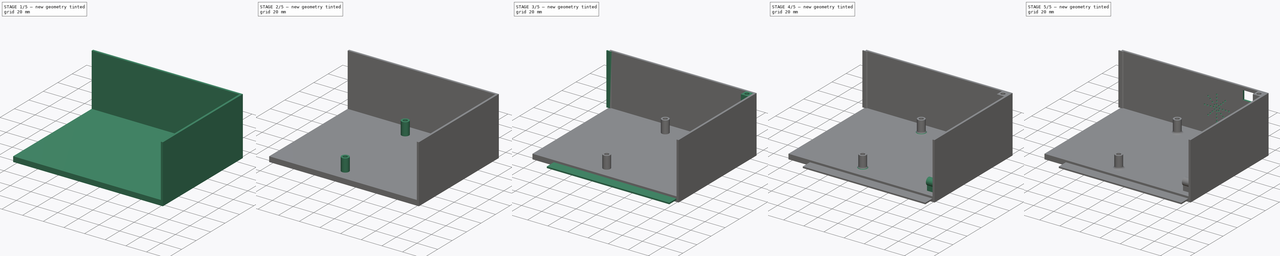
[diagram: build sequence overview — one tinted view per stage of 5, left to right]
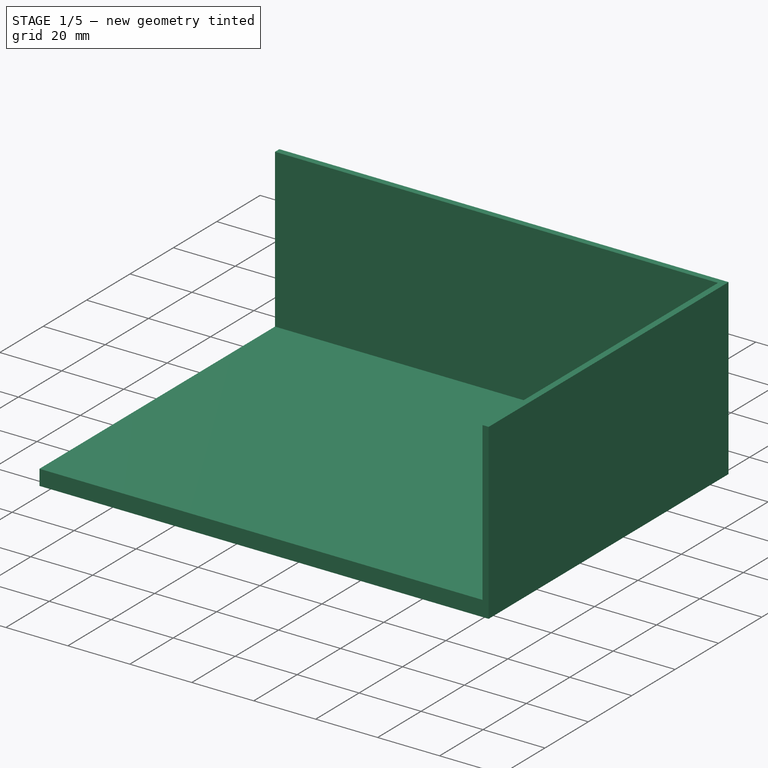
[diagram: stage 1 of 5 — iso view after this stage's code; geometry added in this stage tinted green]
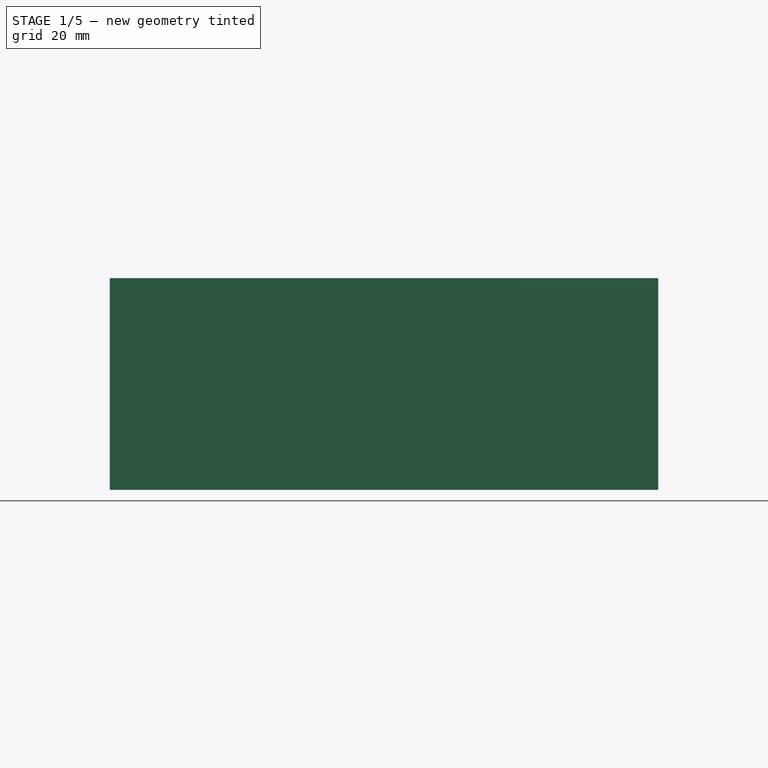
[diagram: stage 1 of 5 — front view after this stage's code; geometry added in this stage tinted green]
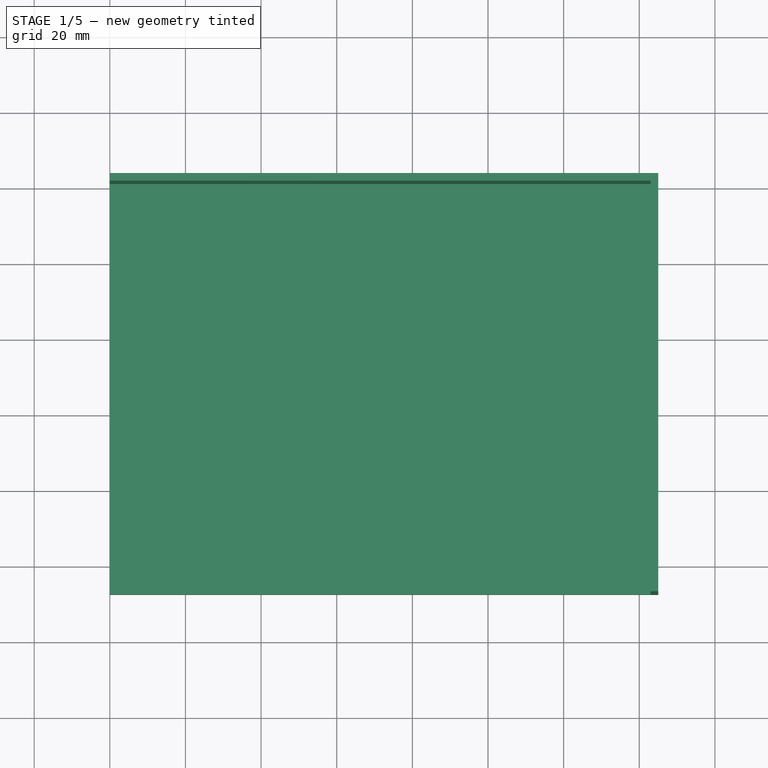
[diagram: stage 1 of 5 — top view after this stage's code; geometry added in this stage tinted green]
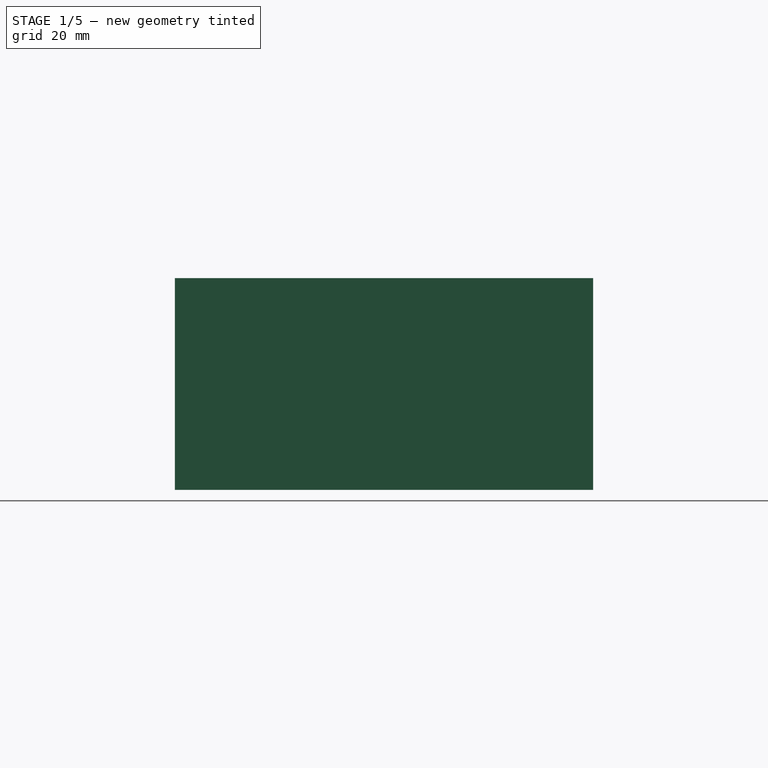
[diagram: stage 1 of 5 — right view after this stage's code; geometry added in this stage tinted green]
FCSTD DOCUMENT  (FreeCAD 2022.430R26244 +4758 (Git))
Label: FirstPartProcessor
License: All rights reserved
LicenseURL: http://en.wikipedia.org/wiki/All_rights_reserved
objects: Sketcher::SketchObject×15, PartDesign::Pad×9, PartDesign::Pocket×6, PartDesign::Fillet×2, PartDesign::CoordinateSystem×1, PartDesign::PolarPattern×1, PartDesign::Body×1, App::Part×1
note: 71 computed .brp shape members not serialized (recipe doc carries the construction recipe); baked Part::Feature solids carry a one-line shape summary decoded from their .brp

FEATURE [PartDesign::CoordinateSystem] LCS_0
  AttacherType = Attacher::AttachEngine3D
  MapMode = 2
  Support = -> [X_Axis001]
  TreeRank = 0
FEATURE [Sketcher::SketchObject] Sketch_1
  FullyConstrained = true
  TreeRank = 0
  sketch-geometry (4):
    g0: LineSegment StartX=0 StartY=0 StartZ=0 EndX=-140 EndY=0 EndZ=0
    g1: LineSegment StartX=-140 StartY=0 StartZ=0 EndX=-140 EndY=93 EndZ=0
    g2: LineSegment StartX=-140 StartY=93 StartZ=0 EndX=0 EndY=93 EndZ=0
    g3: LineSegment StartX=0 StartY=93 StartZ=0 EndX=0 EndY=0 EndZ=0
  constraints (11):
    c: Coincident(g0,g1)
    c: Coincident(g1,g2)
    c: Coincident(g2,g3)
    c: Coincident(g3,g0)
    c: Horizontal(g0)
    c: Horizontal(g2)
    c: Vertical(g1)
    c: Vertical(g3)
    c: Coincident(g0,g-1)
    c: DistanceY(g3,g3) = 93
    c: DistanceX(g2,g2) = 140
FEATURE [PartDesign::Pad] Pad  label="MainSupport"
  AddSubType = 0
  CheckUpToFaceLimits = true
  ClaimChildren = false
  Direction = (0,0,1)
  Fit = 0
  FitJoin = 0
  InnerFit = 0
  InnerFitJoin = 0
  InnerTaperAngle = 0
  InnerTaperAngleRev = 0
  Length = 5
  Length2 = 100
  NewSolid = false
  Profile = -> Sketch_1
  Suppress = false
  TreeRank = 0
  Type = 0
  _ProfileBasedVersion = 0
FEATURE [Sketcher::SketchObject] Sketch
  ExternalGeometry = -> [Pad]
  FullyConstrained = true
  MapMode = 5
  Support = -> [XY_Plane001]
  TreeRank = 0
  sketch-geometry (4):
    g0: LineSegment StartX=0 StartY=0 StartZ=0 EndX=-140 EndY=0 EndZ=0
    g1: LineSegment StartX=-140 StartY=0 StartZ=0 EndX=-140 EndY=-7.4 EndZ=0
    g2: LineSegment StartX=-140 StartY=-7.4 StartZ=0 EndX=0 EndY=-7.4 EndZ=0
    g3: LineSegment StartX=0 StartY=-7.4 StartZ=0 EndX=0 EndY=0 EndZ=0
  constraints (10):
    c: Coincident(g0,g1)
    c: Coincident(g1,g2)
    c: Coincident(g2,g3)
    c: Coincident(g3,g0)
    c: Horizontal(g2)
    c: Vertical(g1)
    c: Vertical(g3)
    c: Coincident(g0,g-1)
    c: Coincident(g0,g-3)
    c: DistanceY(g3,g3) = 7.4
FEATURE [PartDesign::Pad] Pad001  label="ExtraGapSize"
  AddSubType = 0
  BaseFeature = -> Pad
  CheckUpToFaceLimits = true
  ClaimChildren = false
  Direction = (0,0,1)
  Fit = 0
  FitJoin = 0
  InnerFit = 0
  InnerFitJoin = 0
  InnerTaperAngle = 0
  InnerTaperAngleRev = 0
  Length = 5
  Length2 = 100
  NewSolid = false
  Profile = -> Sketch
  Suppress = false
  TreeRank = 0
  Type = 0
  _ProfileBasedVersion = 0
FEATURE [Sketcher::SketchObject] Sketch003
  ExternalGeometry = -> [Pad001]
  FullyConstrained = true
  MapMode = 5
  Support = -> [XY_Plane001]
  TreeRank = 0
  sketch-geometry (6):
    g0: LineSegment StartX=0 StartY=-7.4 StartZ=0 EndX=5 EndY=-7.4 EndZ=0
    g1: LineSegment StartX=5 StartY=-7.4 StartZ=0 EndX=5 EndY=103.2 EndZ=0
    g2: LineSegment StartX=5 StartY=103.2 StartZ=0 EndX=-140 EndY=103.2 EndZ=0
    g3: LineSegment StartX=0 StartY=93 StartZ=0 EndX=0 EndY=-7.4 EndZ=0
    g4: LineSegment StartX=-140 StartY=93 StartZ=0 EndX=-140 EndY=103.2 EndZ=0
    g5: LineSegment StartX=-140 StartY=93 StartZ=0 EndX=0 EndY=93 EndZ=0
  constraints (15):
    c: Coincident(g0,g1)
    c: Coincident(g1,g2)
    c: Coincident(g3,g0)
    c: Horizontal(g0)
    c: Horizontal(g2)
    c: Vertical(g1)
    c: DistanceX(g0,g0) = 5
    c: Coincident(g0,g-4)
    c: Coincident(g3,g-3)
    c: Coincident(g4,g-5)
    c: Vertical(g4)
    c: Coincident(g5,g4)
    c: Coincident(g5,g3)
    c: Coincident(g2,g4)
    c: DistanceY(g4,g4) = 10.2
FEATURE [PartDesign::Pad] Pad003  label="ExtraSideSize"
  AddSubType = 0
  BaseFeature = -> Pad001
  CheckUpToFaceLimits = true
  ClaimChildren = false
  Direction = (0,0,1)
  Fit = 0
  FitJoin = 0
  InnerFit = 0
  InnerFitJoin = 0
  InnerTaperAngle = 0
  InnerTaperAngleRev = 0
  Length = 5
  Length2 = 100
  NewSolid = false
  Profile = -> Sketch003
  Suppress = false
  TreeRank = 0
  Type = 0
  _ProfileBasedVersion = 0
FEATURE [Sketcher::SketchObject] Sketch004
  ExternalGeometry = -> [Pad003]
  FullyConstrained = true
  MapMode = 5
  Placement = pos=(0,0,5) rot=(0,0,1;0rad)
  Support = -> [Pad003]
  TreeRank = 0
  sketch-geometry (6):
    g0: LineSegment StartX=5 StartY=103.2 StartZ=0 EndX=-140 EndY=103.2 EndZ=0
    g1: LineSegment StartX=5 StartY=-7.4 StartZ=0 EndX=5 EndY=103.2 EndZ=0
    g2: LineSegment StartX=3 StartY=-7.4 StartZ=0 EndX=3 EndY=101.2 EndZ=0
    g3: LineSegment StartX=3 StartY=-7.4 StartZ=0 EndX=5 EndY=-7.4 EndZ=0
    g4: LineSegment StartX=-140 StartY=103.2 StartZ=0 EndX=-140 EndY=101.2 EndZ=0
    g5: LineSegment StartX=3 StartY=101.2 StartZ=0 EndX=-140 EndY=101.2 EndZ=0
  constraints (15):
    c: Coincident(g1,g0)
    c: Coincident(g0,g-3)
    c: Vertical(g2)
    c: Coincident(g1,g-3)
    c: PointOnObject(g2,g-4)
    c: Coincident(g3,g2)
    c: Coincident(g3,g1)
    c: Coincident(g0,g-5)
    c: Coincident(g4,g0)
    c: PointOnObject(g4,g-5)
    c: Coincident(g5,g2)
    c: Coincident(g5,g4)
    c: Horizontal(g5)
    c: DistanceX(g3,g3) = 2
    c: DistanceY(g4,g4) = 2
FEATURE [PartDesign::Pad] Pad004  label="SidePanel"
  AddSubType = 0
  BaseFeature = -> Pad003
  CheckUpToFaceLimits = true
  ClaimChildren = false
  Direction = (0,0,1)
  Fit = 0
  FitJoin = 0
  InnerFit = 0
  InnerFitJoin = 0
  InnerTaperAngle = 0
  InnerTaperAngleRev = 0
  Length = 51
  Length2 = 100
  NewSolid = false
  Profile = -> Sketch004
  Suppress = false
  TreeRank = 0
  Type = 0
  _ProfileBasedVersion = 0
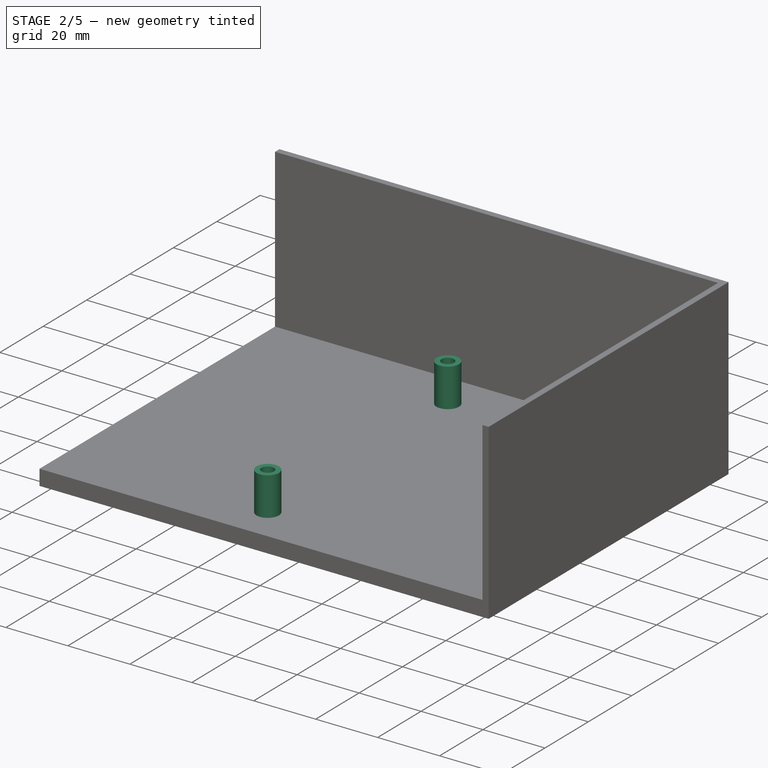
[diagram: stage 2 of 5 — iso view after this stage's code; geometry added in this stage tinted green]
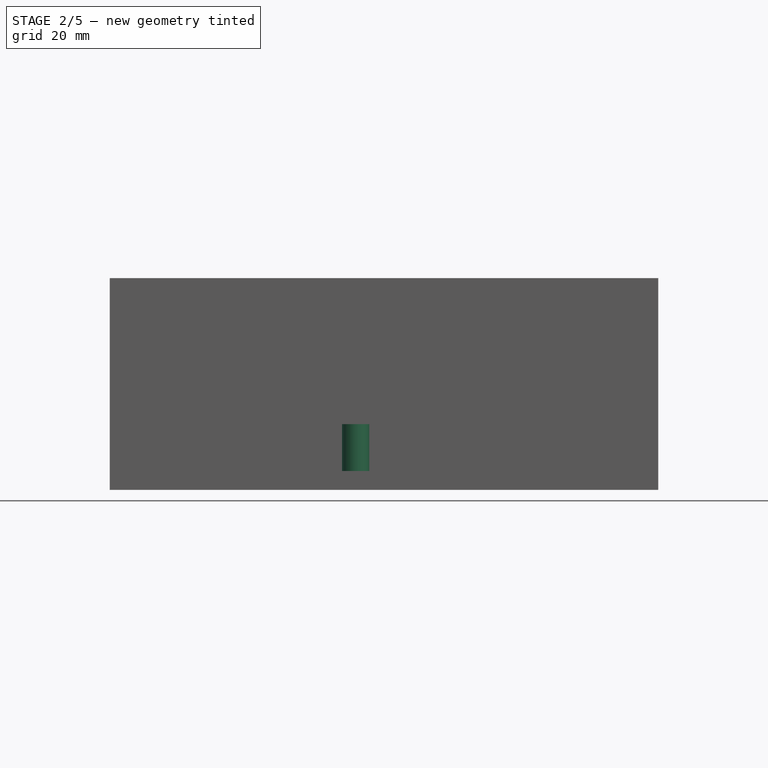
[diagram: stage 2 of 5 — front view after this stage's code; geometry added in this stage tinted green]
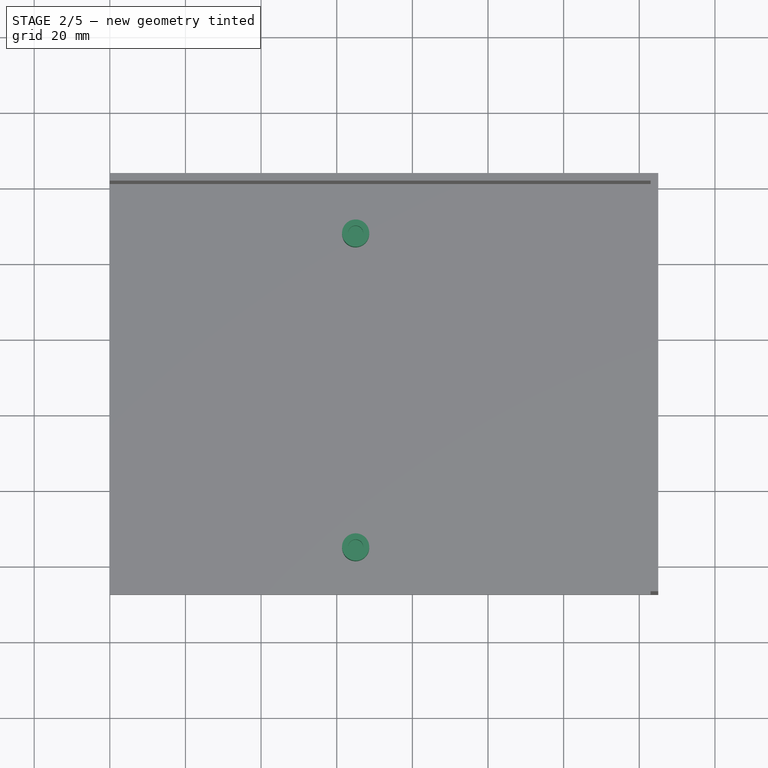
[diagram: stage 2 of 5 — top view after this stage's code; geometry added in this stage tinted green]
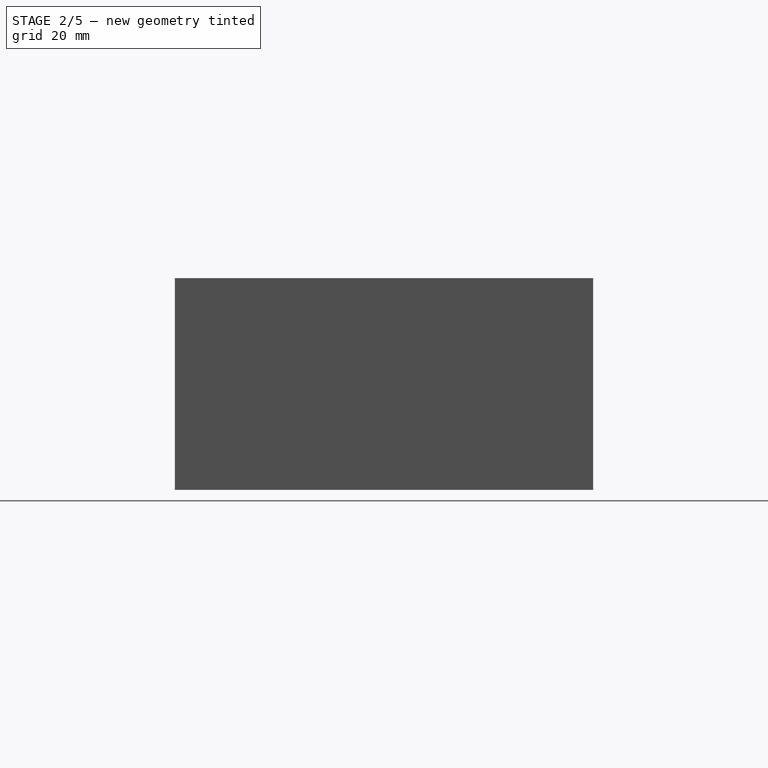
[diagram: stage 2 of 5 — right view after this stage's code; geometry added in this stage tinted green]
FEATURE [Sketcher::SketchObject] Sketch006
  ExternalGeometry = -> [Pad004]
  FullyConstrained = true
  MapMode = 5
  Placement = pos=(0,0,5) rot=(0,0,1;0rad)
  TreeRank = 0
  sketch-geometry (3):
    g0: Circle CenterX=-75 CenterY=5 CenterZ=0 NormalX=0 NormalY=0 NormalZ=1 AngleXU=0 Radius=3.6
    g1: Circle CenterX=-75 CenterY=88 CenterZ=0 NormalX=0 NormalY=0 NormalZ=1 AngleXU=0 Radius=3.6
    g2: LineSegment [constr] StartX=-75 StartY=88 StartZ=0 EndX=-75 EndY=5 EndZ=0
  constraints (8):
    c: DistanceY(g-1,g0) = 5
    c: Diameter(g0) = 7.2
    c: DistanceY(g1,g-3) = 5
    c: Diameter(g1) = 7.2
    c: DistanceX(g-3,g1) = 65
    c: Coincident(g2,g1)
    c: Coincident(g2,g0)
    c: Vertical(g2)
FEATURE [PartDesign::Pad] Pad006  label="ProcessorColumn"
  AddSubType = 0
  BaseFeature = -> Pad004
  CheckUpToFaceLimits = true
  ClaimChildren = false
  Direction = (0,0,1)
  Fit = 0
  FitJoin = 0
  InnerFit = 0
  InnerFitJoin = 0
  InnerTaperAngle = 0
  InnerTaperAngleRev = 0
  Length = 12.4
  Length2 = 100
  NewSolid = false
  Profile = -> Sketch006
  Suppress = false
  TreeRank = 0
  Type = 0
  _ProfileBasedVersion = 0
FEATURE [Sketcher::SketchObject] Sketch009
  ExternalGeometry = -> [Pad006]
  FullyConstrained = true
  MapMode = 5
  Placement = pos=(-140,0,0) rot=(0.57735,-0.57735,-0.57735;2.0944rad)
  TreeRank = 0
  sketch-geometry (4):
    g0: LineSegment StartX=-101.25 StartY=3.5 StartZ=0 EndX=-13.55 EndY=3.5 EndZ=0
    g1: LineSegment StartX=-13.55 StartY=3.5 StartZ=0 EndX=-13.55 EndY=1.42 EndZ=0
    g2: LineSegment StartX=-13.55 StartY=1.42 StartZ=0 EndX=-101.25 EndY=1.42 EndZ=0
    g3: LineSegment StartX=-101.25 StartY=1.42 StartZ=0 EndX=-101.25 EndY=3.5 EndZ=0
  constraints (12):
    c: Coincident(g0,g1)
    c: Coincident(g1,g2)
    c: Coincident(g2,g3)
    c: Coincident(g3,g0)
    c: Horizontal(g0)
    c: Horizontal(g2)
    c: Vertical(g1)
    c: Vertical(g3)
    c: DistanceX(g-3,g0) = 1.95
    c: DistanceY(g1,g1) = 2.08
    c: DistanceY(g0,g-4) = 1.5
    c: DistanceX(g0,g-4) = 20.95
FEATURE [PartDesign::Pocket] Pocket003  label="PuzzleHole2"
  AddSubType = 1
  BaseFeature = -> Pad006
  CheckUpToFaceLimits = true
  ClaimChildren = false
  Fit = 0
  FitJoin = 0
  InnerFit = 0
  InnerFitJoin = 0
  InnerTaperAngle = 0
  InnerTaperAngleRev = 0
  Length = 11
  Length2 = 100
  NewSolid = false
  Profile = -> Sketch009
  Suppress = false
  TreeRank = 0
  Type = 0
  _ProfileBasedVersion = 0
  _Version = 0
FEATURE [Sketcher::SketchObject] Sketch010
  ExternalGeometry = -> [Pocket003]
  FullyConstrained = true
  MapMode = 5
  Placement = pos=(0,0,17.4) rot=(0,0,1;0rad)
  Support = -> [Pocket003]
  TreeRank = 1
  sketch-geometry (2):
    g0: Circle CenterX=-75 CenterY=88 CenterZ=0 NormalX=0 NormalY=0 NormalZ=1 AngleXU=0 Radius=2
    g1: Circle CenterX=-75 CenterY=5 CenterZ=0 NormalX=0 NormalY=0 NormalZ=1 AngleXU=0 Radius=2
  constraints (4):
    c: Coincident(g0,g-3)
    c: Coincident(g1,g-4)
    c: Diameter(g0) = 4
    c: Diameter(g1) = 4
FEATURE [PartDesign::Pocket] Pocket  label="ProcessorColumnHole"
  AddSubType = 1
  BaseFeature = -> Pocket003
  CheckUpToFaceLimits = true
  ClaimChildren = false
  Fit = 0
  FitJoin = 0
  InnerFit = 0
  InnerFitJoin = 0
  InnerTaperAngle = 0
  InnerTaperAngleRev = 0
  Length = 6.7
  Length2 = 100
  Linearize = true
  NewSolid = false
  Profile = -> Sketch010
  Suppress = false
  TreeRank = 2
  Type = 0
  _ProfileBasedVersion = 1
  _Version = 1
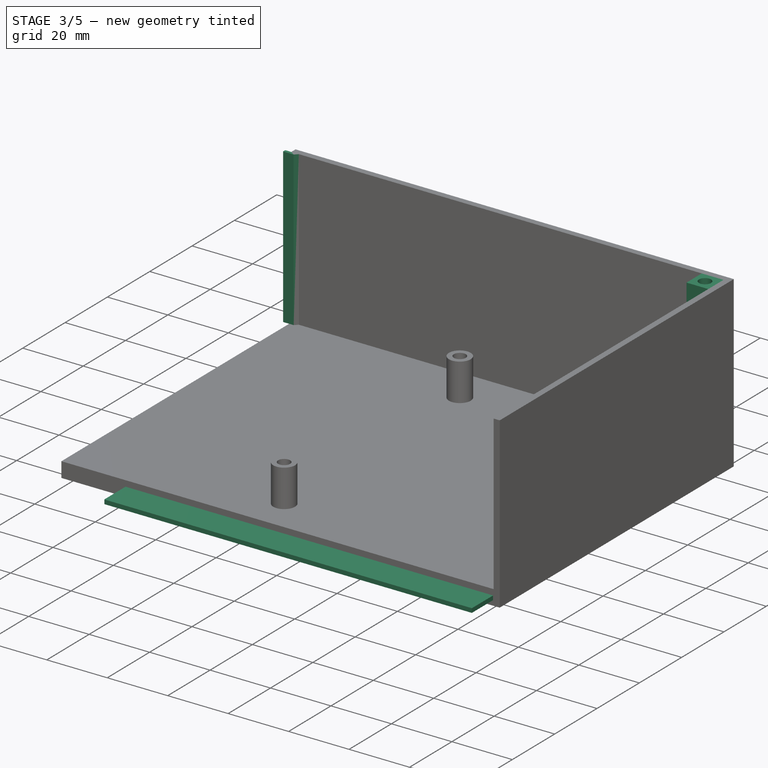
[diagram: stage 3 of 5 — iso view after this stage's code; geometry added in this stage tinted green]
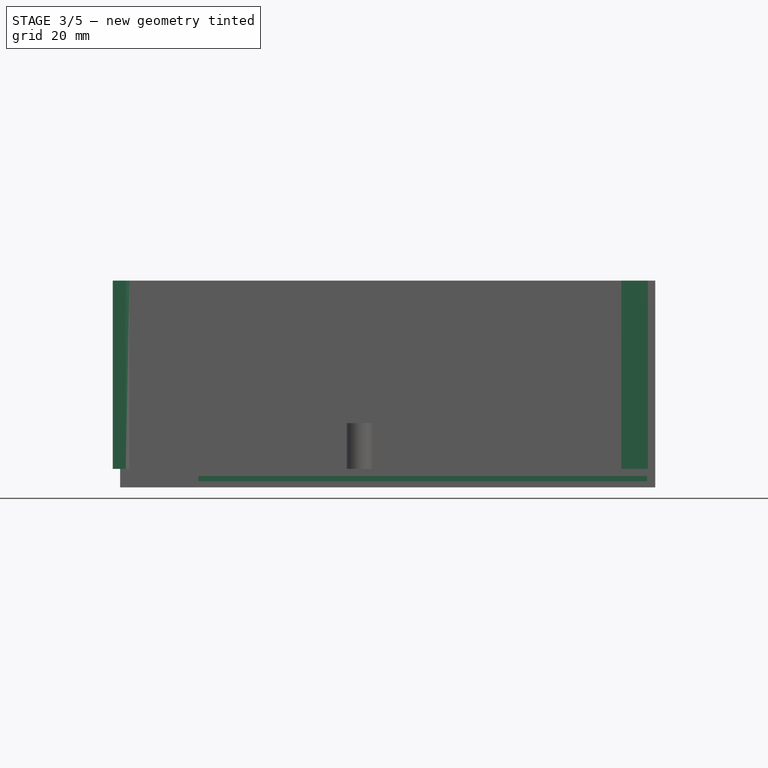
[diagram: stage 3 of 5 — front view after this stage's code; geometry added in this stage tinted green]
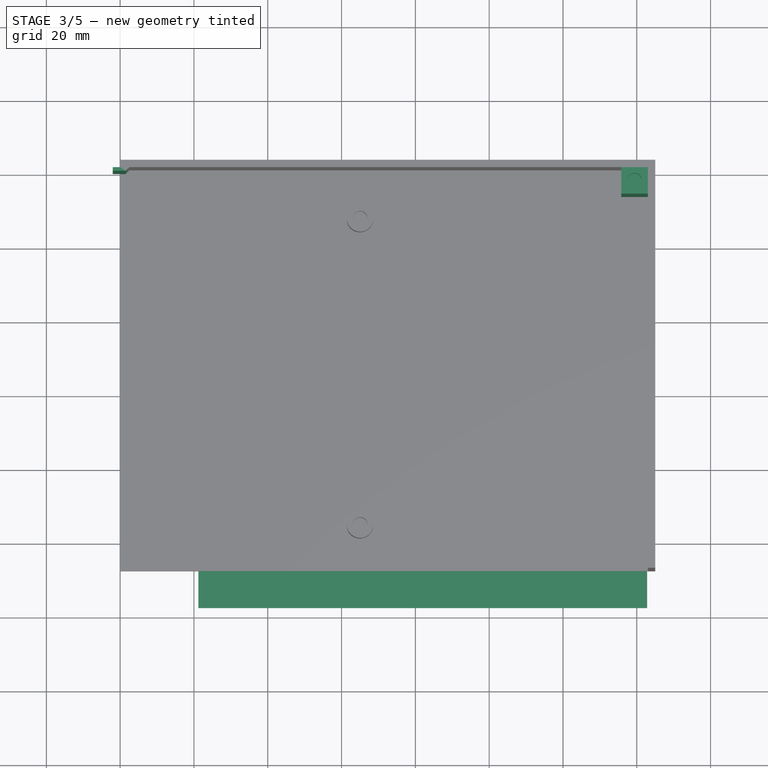
[diagram: stage 3 of 5 — top view after this stage's code; geometry added in this stage tinted green]
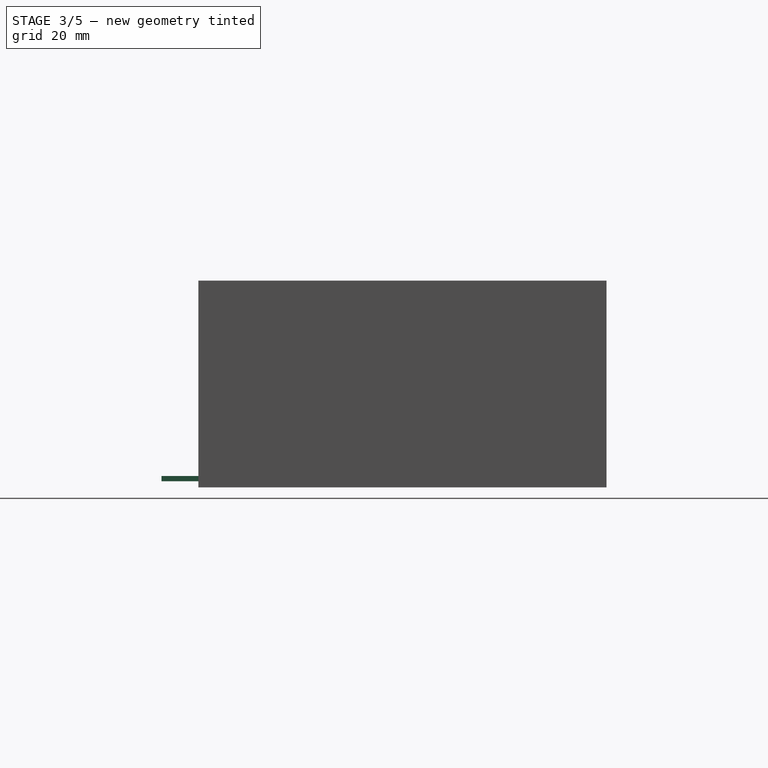
[diagram: stage 3 of 5 — right view after this stage's code; geometry added in this stage tinted green]
FEATURE [Sketcher::SketchObject] Sketch011
  ExternalGeometry = -> [Pocket]
  FullyConstrained = true
  MapMode = 5
  Placement = pos=(0,0,5) rot=(0,0,1;0rad)
  Support = -> [Pocket]
  TreeRank = 3
  sketch-geometry (6):
    g0: LineSegment StartX=-138.5 StartY=101.2 StartZ=0 EndX=-142 EndY=101.2 EndZ=0
    g1: LineSegment StartX=-142 StartY=101.2 StartZ=0 EndX=-142 EndY=100.2 EndZ=0
    g2: LineSegment StartX=-142 StartY=100.2 StartZ=0 EndX=-138.5 EndY=100.2 EndZ=0
    g3: LineSegment [constr] StartX=-138.5 StartY=100.2 StartZ=0 EndX=-138.5 EndY=101.2 EndZ=0
    g4: LineSegment StartX=-138.5 StartY=100.2 StartZ=0 EndX=-137.5 EndY=101.2 EndZ=0
    g5: LineSegment StartX=-137.5 StartY=101.2 StartZ=0 EndX=-138.5 EndY=101.2 EndZ=0
  constraints (17):
    c: Coincident(g0,g1)
    c: Coincident(g1,g2)
    c: Coincident(g2,g3)
    c: Coincident(g3,g0)
    c: Horizontal(g0)
    c: Horizontal(g2)
    c: Vertical(g1)
    c: Vertical(g3)
    c: PointOnObject(g0,g-3)
    c: DistanceX(g0,g-3) = 2
    c: DistanceX(g-3,g0) = 1.5
    c: DistanceY(g1,g1) = 1
    c: Coincident(g4,g2)
    c: PointOnObject(g4,g-3)
    c: Coincident(g5,g4)
    c: Coincident(g5,g0)
    c: Angle(g4,g3) = 0.785398
FEATURE [PartDesign::Pad] Pad007  label="PanelGuard"
  AddSubType = 0
  AlongSketchNormal = false
  BaseFeature = -> Pocket
  CheckUpToFaceLimits = true
  ClaimChildren = false
  Direction = (0,0,1)
  Fit = 0
  FitJoin = 0
  InnerFit = 0
  InnerFitJoin = 0
  InnerTaperAngle = 0
  InnerTaperAngleRev = 0
  Length = 10
  Length2 = 100
  Linearize = true
  NewSolid = false
  Profile = -> Sketch011
  Suppress = false
  TreeRank = 4
  Type = 3
  UpToFace = -> Pocket [Face24]
  _ProfileBasedVersion = 1
FEATURE [Sketcher::SketchObject] Sketch012
  ExternalGeometry = -> [Pad007]
  FullyConstrained = true
  MapMode = 5
  Placement = pos=(0,-7.4,0) rot=(1,0,0;1.5708rad)
  Support = -> [Pad007]
  TreeRank = 5
  sketch-geometry (4):
    g0: LineSegment StartX=-118.8 StartY=3.06 StartZ=0 EndX=2.8 EndY=3.06 EndZ=0
    g1: LineSegment StartX=2.8 StartY=3.06 StartZ=0 EndX=2.8 EndY=1.66 EndZ=0
    g2: LineSegment StartX=2.8 StartY=1.66 StartZ=0 EndX=-118.8 EndY=1.66 EndZ=0
    g3: LineSegment StartX=-118.8 StartY=1.66 StartZ=0 EndX=-118.8 EndY=3.06 EndZ=0
  constraints (12):
    c: Coincident(g0,g1)
    c: Coincident(g1,g2)
    c: Coincident(g2,g3)
    c: Coincident(g3,g0)
    c: Horizontal(g0)
    c: Horizontal(g2)
    c: Vertical(g1)
    c: Vertical(g3)
    c: DistanceX(g-4,g0) = 21.2
    c: DistanceX(g0,g-3) = 2.2
    c: DistanceY(g1,g1) = 1.4
    c: DistanceY(g0,g-3) = 1.94
FEATURE [PartDesign::Pad] Pad008  label="Puzzle1"
  AddSubType = 0
  AlongSketchNormal = false
  BaseFeature = -> Pad007
  CheckUpToFaceLimits = true
  ClaimChildren = false
  Direction = (0,-1,2e-16)
  Fit = 0
  FitJoin = 0
  InnerFit = 0
  InnerFitJoin = 0
  InnerTaperAngle = 0
  InnerTaperAngleRev = 0
  Length = 10
  Length2 = 100
  Linearize = true
  NewSolid = false
  Profile = -> Sketch012
  Suppress = false
  TreeRank = 6
  Type = 0
  _ProfileBasedVersion = 1
FEATURE [Sketcher::SketchObject] Sketch013
  ExternalGeometry = -> [Pad008]
  FullyConstrained = true
  MapMode = 5
  Placement = pos=(0,0,5) rot=(0,0,1;0rad)
  Support = -> [Pad008]
  TreeRank = 7
  sketch-geometry (4):
    g0: LineSegment StartX=3 StartY=101.2 StartZ=0 EndX=-4.2 EndY=101.2 EndZ=0
    g1: LineSegment StartX=-4.2 StartY=101.2 StartZ=0 EndX=-4.2 EndY=94 EndZ=0
    g2: LineSegment StartX=-4.2 StartY=94 StartZ=0 EndX=3 EndY=94 EndZ=0
    g3: LineSegment StartX=3 StartY=94 StartZ=0 EndX=3 EndY=101.2 EndZ=0
  constraints (11):
    c: Coincident(g0,g1)
    c: Coincident(g1,g2)
    c: Coincident(g2,g3)
    c: Coincident(g3,g0)
    c: Horizontal(g0)
    c: Horizontal(g2)
    c: Vertical(g1)
    c: Vertical(g3)
    c: Coincident(g0,g-4)
    c: DistanceY(g1,g1) = 7.2
    c: Equal(g1,g2)
FEATURE [PartDesign::Pad] Pad009  label="ColumnPart"
  AddSubType = 0
  AlongSketchNormal = false
  BaseFeature = -> Pad008
  CheckUpToFaceLimits = true
  ClaimChildren = false
  Direction = (0,0,1)
  Fit = 0
  FitJoin = 0
  InnerFit = 0
  InnerFitJoin = 0
  InnerTaperAngle = 0
  InnerTaperAngleRev = 0
  Length = 10
  Length2 = 100
  Linearize = true
  NewSolid = false
  Profile = -> Sketch013
  Suppress = false
  TreeRank = 8
  Type = 3
  UpToFace = -> Pad008 [Face25]
  _ProfileBasedVersion = 1
FEATURE [Sketcher::SketchObject] Sketch014
  ExternalGeometry = -> [Pad009]
  FullyConstrained = true
  MapMode = 5
  Placement = pos=(0,0,56) rot=(0,0,1;0rad)
  Support = -> [Pad009]
  TreeRank = 9
  sketch-geometry (3):
    g0: LineSegment [constr] StartX=-4.2 StartY=97.6 StartZ=0 EndX=-0.6 EndY=97.6 EndZ=0
    g1: LineSegment [constr] StartX=-0.6 StartY=97.6 StartZ=0 EndX=-0.6 EndY=94 EndZ=0
    g2: Circle CenterX=-0.6 CenterY=97.6 CenterZ=0 NormalX=0 NormalY=0 NormalZ=1 AngleXU=0 Radius=2
  constraints (7):
    c: Horizontal(g0)
    c: Coincident(g1,g0)
    c: Vertical(g1)
    c: Symmetric(g-4,g-4,g0)
    c: Symmetric(g-3,g-4,g1)
    c: Coincident(g2,g0)
    c: Diameter(g2) = 4
FEATURE [PartDesign::Pocket] Pocket004  label="ColumnPartHole"
  AddSubType = 1
  BaseFeature = -> Pad009
  CheckUpToFaceLimits = true
  ClaimChildren = false
  Fit = 0
  FitJoin = 0
  InnerFit = 0
  InnerFitJoin = 0
  InnerTaperAngle = 0
  InnerTaperAngleRev = 0
  Length = 6.7
  Length2 = 100
  Linearize = true
  NewSolid = false
  Profile = -> Sketch014
  Suppress = false
  TreeRank = 10
  Type = 0
  _ProfileBasedVersion = 1
  _Version = 1
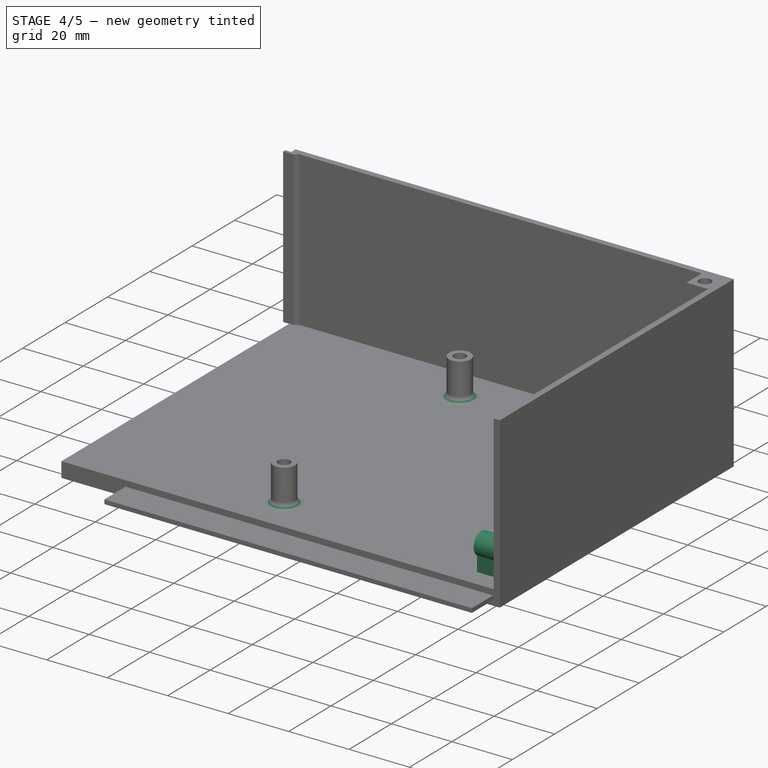
[diagram: stage 4 of 5 — iso view after this stage's code; geometry added in this stage tinted green]
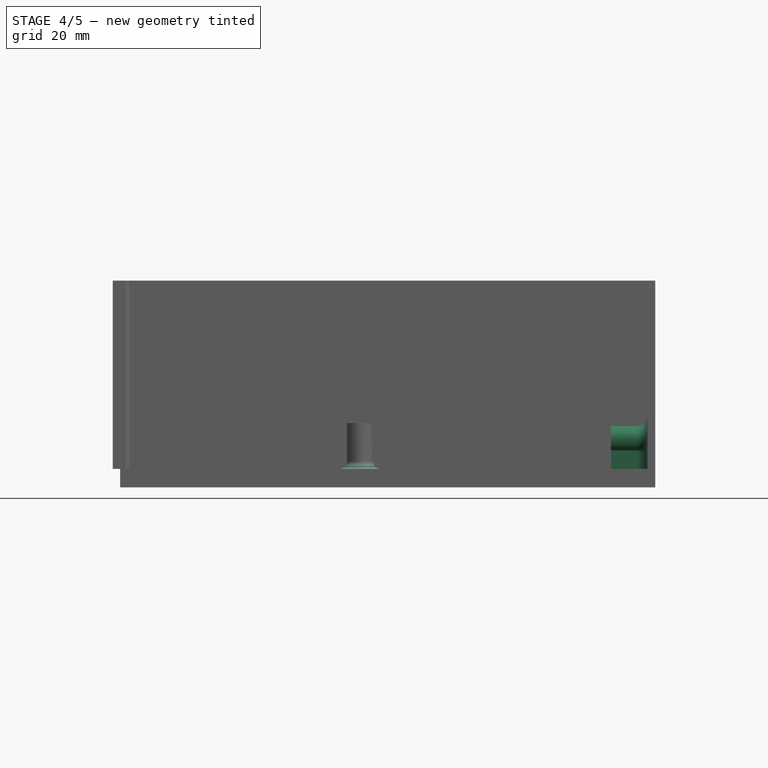
[diagram: stage 4 of 5 — front view after this stage's code; geometry added in this stage tinted green]
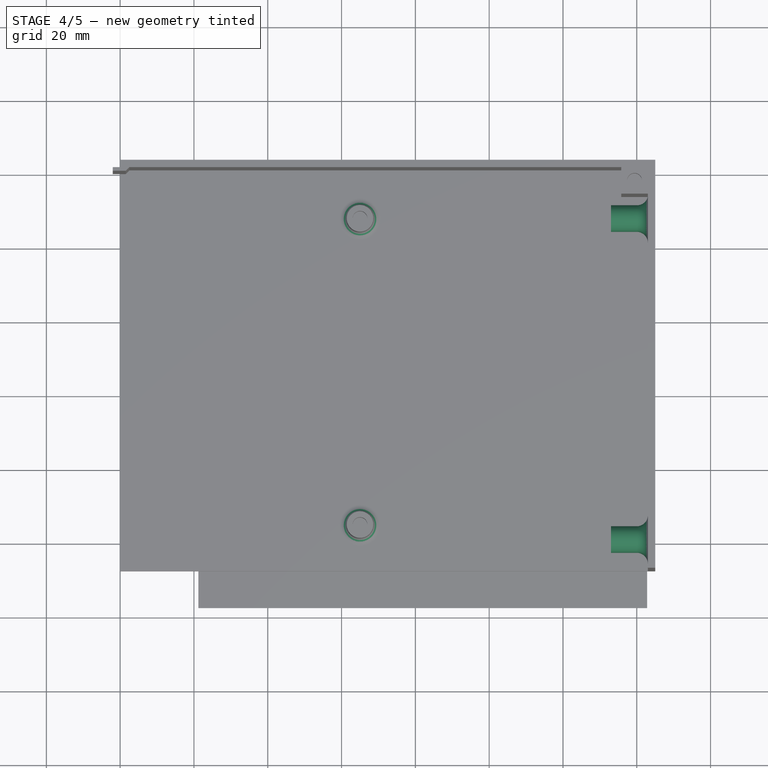
[diagram: stage 4 of 5 — top view after this stage's code; geometry added in this stage tinted green]
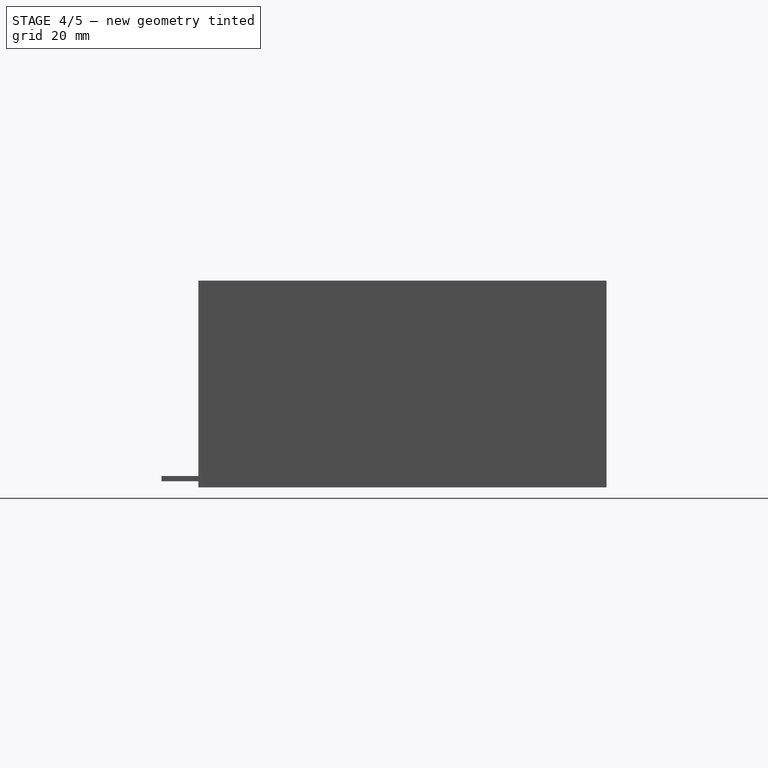
[diagram: stage 4 of 5 — right view after this stage's code; geometry added in this stage tinted green]
FEATURE [Sketcher::SketchObject] Sketch015
  ExternalGeometry = -> [Pocket004]
  FullyConstrained = true
  MapMode = 5
  Placement = pos=(3,0,0) rot=(0.57735,-0.57735,-0.57735;2.0944rad)
  Support = -> [Pocket004]
  TreeRank = 11
  sketch-geometry (11):
    g0: LineSegment [constr] StartX=-88 StartY=13 StartZ=0 EndX=-1 EndY=13 EndZ=0
    g1: LineSegment StartX=-90 StartY=10.0067 StartZ=0 EndX=-90 EndY=5 EndZ=0
    g2: LineSegment StartX=-86 StartY=10.0067 StartZ=0 EndX=-86 EndY=5 EndZ=0
    g3: LineSegment [constr] StartX=-86 StartY=10.0067 StartZ=0 EndX=-90 EndY=10.0067 EndZ=0
    g4: LineSegment StartX=-86 StartY=5 StartZ=0 EndX=-90 EndY=5 EndZ=0
    g5: ArcOfCircle CenterX=-88 CenterY=13 CenterZ=0 NormalX=0 NormalY=0 NormalZ=1 AngleXU=0 Radius=3.6 StartAngle=5.30142 EndAngle=10.4065
    g6: LineSegment StartX=-3 StartY=10.0067 StartZ=0 EndX=-3 EndY=5 EndZ=0
    g7: LineSegment [constr] StartX=-3 StartY=10.0067 StartZ=0 EndX=1 EndY=10.0067 EndZ=0
    g8: LineSegment StartX=1 StartY=10.0067 StartZ=0 EndX=1 EndY=5 EndZ=0
    g9: LineSegment StartX=-3 StartY=5 StartZ=0 EndX=1 EndY=5 EndZ=0
    g10: ArcOfCircle CenterX=-1 CenterY=13 CenterZ=0 NormalX=0 NormalY=0 NormalZ=1 AngleXU=0 Radius=3.6 StartAngle=5.30142 EndAngle=10.4065
  constraints (32):
    c: DistanceX(g-3,g5) = 6
    c: DistanceY(g-3,g5) = 8
    c: Coincident(g0,g5)
    c: Coincident(g0,g10)
    c: Horizontal(g0)
    c: DistanceX(g0,g0) = 87
    c: PointOnObject(g1,g-4)
    c: Vertical(g1)
    c: PointOnObject(g2,g-4)
    c: Vertical(g2)
    c: Coincident(g3,g2)
    c: Coincident(g3,g1)
    c: Horizontal(g3)
    c: Coincident(g4,g2)
    c: Coincident(g4,g1)
    c: DistanceX(g3,g3) = 4
    c: Diameter(g5) = 7.2
    c: Coincident(g2,g5)
    c: Coincident(g5,g1)
    c: PointOnObject(g6,g-4)
    c: Vertical(g6)
    c: Coincident(g7,g6)
    c: Horizontal(g7)
    c: Coincident(g8,g7)
    c: Vertical(g8)
    c: Coincident(g9,g6)
    c: Coincident(g9,g8)
    c: Horizontal(g9)
    c: DistanceX(g7,g7) = 4
    c: Diameter(g10) = 7.2
    c: Coincident(g10,g6)
    c: Coincident(g10,g8)
FEATURE [PartDesign::Pad] Pad010  label="ColumnPowerSupply"
  AddSubType = 0
  AlongSketchNormal = false
  BaseFeature = -> Pocket004
  CheckUpToFaceLimits = true
  ClaimChildren = false
  Direction = (-1,0,0)
  Fit = 0
  FitJoin = 0
  InnerFit = 0
  InnerFitJoin = 0
  InnerTaperAngle = 0
  InnerTaperAngleRev = 0
  Length = 10
  Length2 = 100
  Linearize = true
  NewSolid = false
  Profile = -> Sketch015
  Suppress = false
  TreeRank = 12
  Type = 0
  _ProfileBasedVersion = 1
FEATURE [PartDesign::Fillet] Fillet
  AddSubType = 0
  Base = -> Pad010 [Edge37,Edge36]
  BaseFeature = -> Pad010
  NewSolid = false
  Radius = 2
  SupportTransform = false
  Suppress = false
  TreeRank = 13
FEATURE [PartDesign::Fillet] Fillet001
  AddSubType = 0
  Base = -> Fillet [Edge81,Edge44,Edge61,Edge33,Edge80,Edge67]
  BaseFeature = -> Fillet
  NewSolid = false
  Radius = 3
  SupportTransform = false
  Suppress = false
  TreeRank = 14
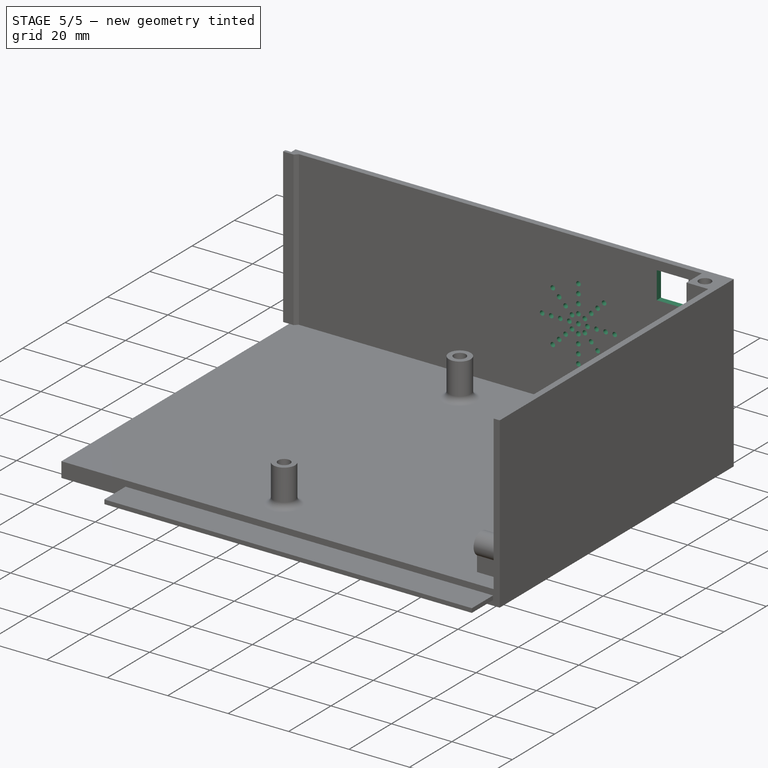
[diagram: stage 5 of 5 — iso view after this stage's code; geometry added in this stage tinted green]
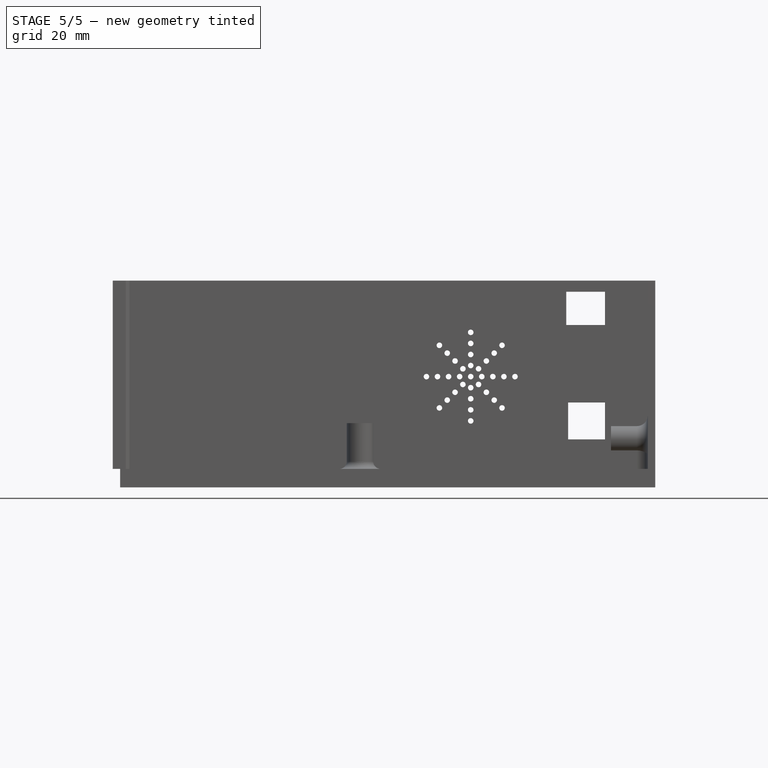
[diagram: stage 5 of 5 — front view after this stage's code; geometry added in this stage tinted green]
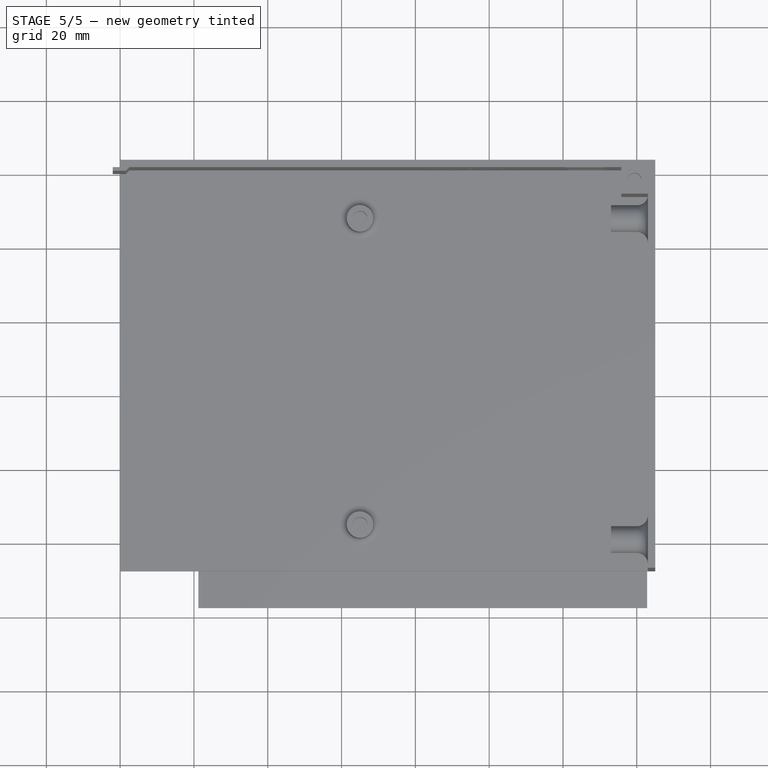
[diagram: stage 5 of 5 — top view after this stage's code; geometry added in this stage tinted green]
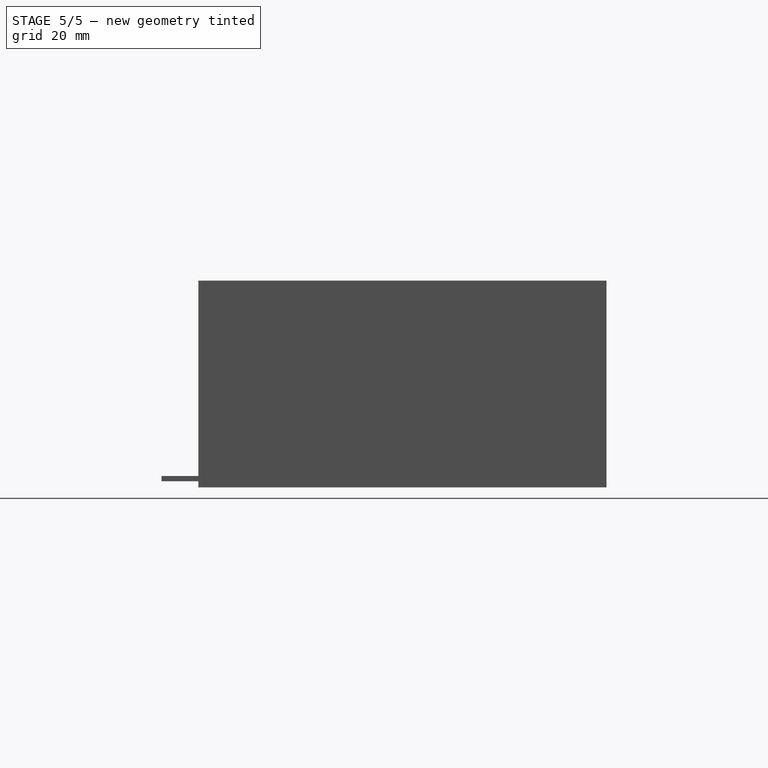
[diagram: stage 5 of 5 — right view after this stage's code; geometry added in this stage tinted green]
FEATURE [Sketcher::SketchObject] Sketch016
  ExternalGeometry = -> [Fillet001]
  FullyConstrained = true
  MapMode = 5
  Placement = pos=(-7,0,0) rot=(0.57735,-0.57735,-0.57735;2.0944rad)
  Support = -> [Fillet001]
  TreeRank = 15
  sketch-geometry (2):
    g0: Circle CenterX=-88 CenterY=13 CenterZ=0 NormalX=0 NormalY=0 NormalZ=1 AngleXU=0 Radius=2
    g1: Circle CenterX=-1 CenterY=13 CenterZ=0 NormalX=0 NormalY=0 NormalZ=1 AngleXU=0 Radius=2
  constraints (4):
    c: Coincident(g0,g-3)
    c: Coincident(g1,g-4)
    c: Diameter(g1) = 4
    c: Diameter(g0) = 4
FEATURE [PartDesign::Pocket] Pocket005  label="ColumnPowerSupplyHole"
  AddSubType = 1
  BaseFeature = -> Fillet001
  CheckUpToFaceLimits = true
  ClaimChildren = false
  Fit = 0
  FitJoin = 0
  InnerFit = 0
  InnerFitJoin = 0
  InnerTaperAngle = 0
  InnerTaperAngleRev = 0
  Length = 6.7
  Length2 = 100
  Linearize = true
  NewSolid = false
  Profile = -> Sketch016
  Suppress = false
  TreeRank = 16
  Type = 0
  _ProfileBasedVersion = 1
  _Version = 1
FEATURE [Sketcher::SketchObject] Sketch017
  ExternalGeometry = -> [Pocket005]
  FullyConstrained = true
  MapMode = 5
  Placement = pos=(0,101.2,0) rot=(1,0,0;1.5708rad)
  Support = -> [Pocket005]
  TreeRank = 17
  sketch-geometry (9):
    g0: LineSegment StartX=-19.1 StartY=53 StartZ=0 EndX=-8.6 EndY=53 EndZ=0
    g1: LineSegment StartX=-8.6 StartY=53 StartZ=0 EndX=-8.6 EndY=44 EndZ=0
    g2: LineSegment StartX=-8.6 StartY=44 StartZ=0 EndX=-19.1 EndY=44 EndZ=0
    g3: LineSegment StartX=-19.1 StartY=44 StartZ=0 EndX=-19.1 EndY=53 EndZ=0
    g4: LineSegment StartX=-18.6 StartY=23 StartZ=0 EndX=-8.6 EndY=23 EndZ=0
    g5: LineSegment StartX=-8.6 StartY=23 StartZ=0 EndX=-8.6 EndY=13 EndZ=0
    g6: LineSegment StartX=-8.6 StartY=13 StartZ=0 EndX=-18.6 EndY=13 EndZ=0
    g7: LineSegment StartX=-18.6 StartY=13 StartZ=0 EndX=-18.6 EndY=23 EndZ=0
    g8: LineSegment [constr] StartX=-8.6 StartY=44 StartZ=0 EndX=-8.6 EndY=23 EndZ=0
  constraints (26):
    c: Coincident(g0,g1)
    c: Coincident(g1,g2)
    c: Coincident(g2,g3)
    c: Coincident(g3,g0)
    c: Horizontal(g0)
    c: Horizontal(g2)
    c: Vertical(g1)
    c: Vertical(g3)
    c: DistanceX(g1,g-3) = 11.6
    c: DistanceY(g-3,g1) = 39
    c: DistanceX(g2,g2) = 10.5
    c: DistanceY(g3,g3) = 9
    c: Coincident(g4,g5)
    c: Coincident(g5,g6)
    c: Coincident(g6,g7)
    c: Coincident(g7,g4)
    c: Horizontal(g4)
    c: Horizontal(g6)
    c: Vertical(g5)
    c: Vertical(g7)
    c: DistanceY(g-3,g5) = 8
    c: DistanceY(g7,g7) = 10
    c: Coincident(g8,g1)
    c: Coincident(g8,g4)
    c: Vertical(g8)
    c: DistanceX(g4,g4) = 10
FEATURE [PartDesign::Pocket] Pocket006  label="ConnectorsHole"
  AddSubType = 1
  BaseFeature = -> Pocket005
  CheckUpToFaceLimits = true
  ClaimChildren = false
  Fit = 0
  FitJoin = 0
  InnerFit = 0
  InnerFitJoin = 0
  InnerTaperAngle = 0
  InnerTaperAngleRev = 0
  Length = 5
  Length2 = 100
  Linearize = true
  NewSolid = false
  Profile = -> Sketch017
  Suppress = false
  TreeRank = 18
  Type = 2
  _ProfileBasedVersion = 1
  _Version = 1
FEATURE [Sketcher::SketchObject] Sketch018
  ExternalGeometry = -> [Pocket006]
  FullyConstrained = true
  MapMode = 5
  Placement = pos=(0,103.2,0) rot=(0,0.707107,0.707107;3.14159rad)
  Support = -> [Pocket006]
  TreeRank = 19
  sketch-geometry (7):
    g0: LineSegment [constr] StartX=45 StartY=5 StartZ=0 EndX=45 EndY=30 EndZ=0
    g1: LineSegment [constr] StartX=45 StartY=30 StartZ=0 EndX=25 EndY=30 EndZ=0
    g2: Circle CenterX=33 CenterY=30 CenterZ=0 NormalX=0 NormalY=0 NormalZ=1 AngleXU=0 Radius=0.75
    g3: Circle CenterX=36 CenterY=30 CenterZ=0 NormalX=0 NormalY=0 NormalZ=1 AngleXU=0 Radius=0.75
    g4: Circle CenterX=39 CenterY=30 CenterZ=0 NormalX=0 NormalY=0 NormalZ=1 AngleXU=0 Radius=0.75
    g5: Circle CenterX=42 CenterY=30 CenterZ=0 NormalX=0 NormalY=0 NormalZ=1 AngleXU=0 Radius=0.75
    g6: Circle CenterX=45 CenterY=30 CenterZ=0 NormalX=0 NormalY=0 NormalZ=1 AngleXU=0 Radius=0.75
  constraints (21):
    c: PointOnObject(g0,g-3)
    c: Vertical(g0)
    c: Coincident(g1,g0)
    c: Horizontal(g1)
    c: PointOnObject(g2,g1)
    c: PointOnObject(g3,g1)
    c: PointOnObject(g4,g1)
    c: PointOnObject(g5,g1)
    c: DistanceY(g0,g0) = 25
    c: DistanceX(g1,g1) = 20
    c: Equal(g2,g3)
    c: Equal(g3,g4)
    c: Equal(g4,g5)
    c: DistanceX(g2,g3) = 3
    c: DistanceX(g3,g4) = 3
    c: DistanceX(g4,g5) = 3
    c: Coincident(g6,g0)
    c: Equal(g6,g5)
    c: DistanceX(g-3,g0) = 50
    c: Diameter(g2) = 1.5
    c: DistanceX(g5,g6) = 3
FEATURE [PartDesign::Pocket] Pocket007  label="AirHole"
  AddSubType = 1
  BaseFeature = -> Pocket006
  CheckUpToFaceLimits = true
  ClaimChildren = false
  Fit = 0
  FitJoin = 0
  InnerFit = 0
  InnerFitJoin = 0
  InnerTaperAngle = 0
  InnerTaperAngleRev = 0
  Length = 5
  Length2 = 100
  Linearize = true
  NewSolid = false
  Profile = -> Sketch018
  Suppress = false
  TreeRank = 20
  Type = 2
  _ProfileBasedVersion = 1
  _Version = 1
FEATURE [PartDesign::PolarPattern] PolarPattern
  AddSubType = 0
  Angle = 360
  Axis = -> Pocket007 [Edge182]
  BaseFeature = -> Pocket007
  CopyShape = false
  NewSolid = false
  Occurrences = 8
  OriginalSubs = -> [Pocket007]
  Originals = -> [Pocket007]
  ParallelTransform = true
  SubTransform = true
  Suppress = false
  TreeRank = 21
  _Version = 3
FEATURE [PartDesign::Body] Body
  AutoGroupSolids = false
  ClaimAllChildren = false
  ExportMode = 0
  Group = -> [LCS_0,Sketch_1,Pad,Sketch,Pad001,Sketch003,Pad003,Sketch004,Pad004,Sketch006,Pad006,Sketch009,Pocket003,Sketch010,Pocket,Sketch011,Pad007,Sketch012,Pad008,Sketch013,Pad009,Sketch014,Pocket004,Sketch015,Pad010,Fillet,Fillet001,Sketch016,Pocket005,Sketch017,Pocket006,Sketch018,Pocket007,PolarPattern]
  Origin = -> Origin001
  Tip = -> PolarPattern
  TreeRank = 0
  _ExportChildren = -> [LCS_0,Pad,Pad001,Pad003,Pad004,Pad006,Pocket003,Pocket,Pad007,Pad008,Pad009,Pocket004,Pad010,Fillet,Fillet001,Pocket005,Pocket006,Pocket007,PolarPattern]
  _GroupVersion = 1
FEATURE [App::Part] Part  label="FirstPartProcessor"
  ClaimAllChildren = false
  ExportMode = 1
  Group = -> [Body]
  Origin = -> Origin
  TreeRank = 0
  _ExportChildren = -> [Body]
  _GroupVersion = 1
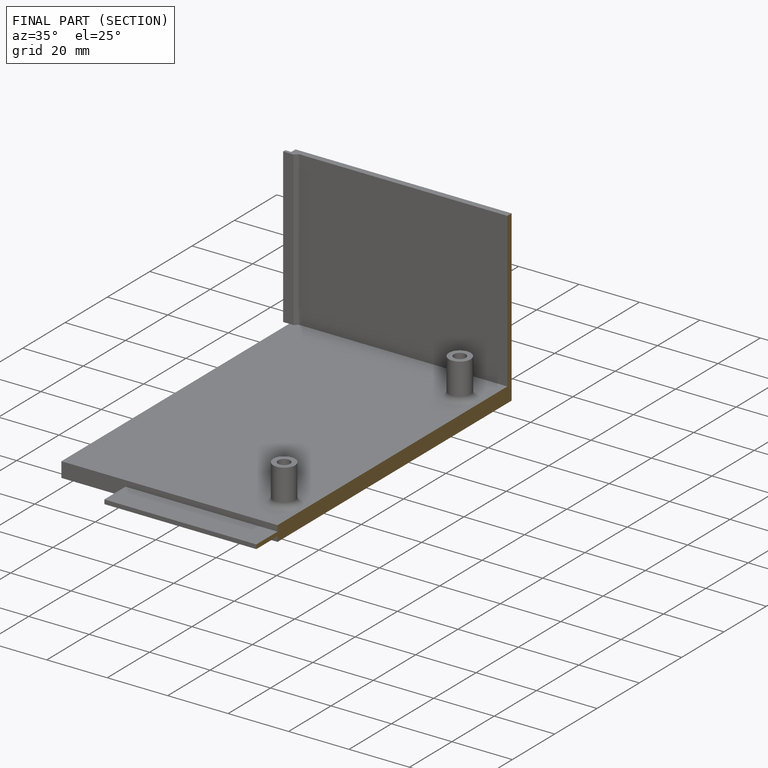
[diagram: finished part — half-section view (interior)]
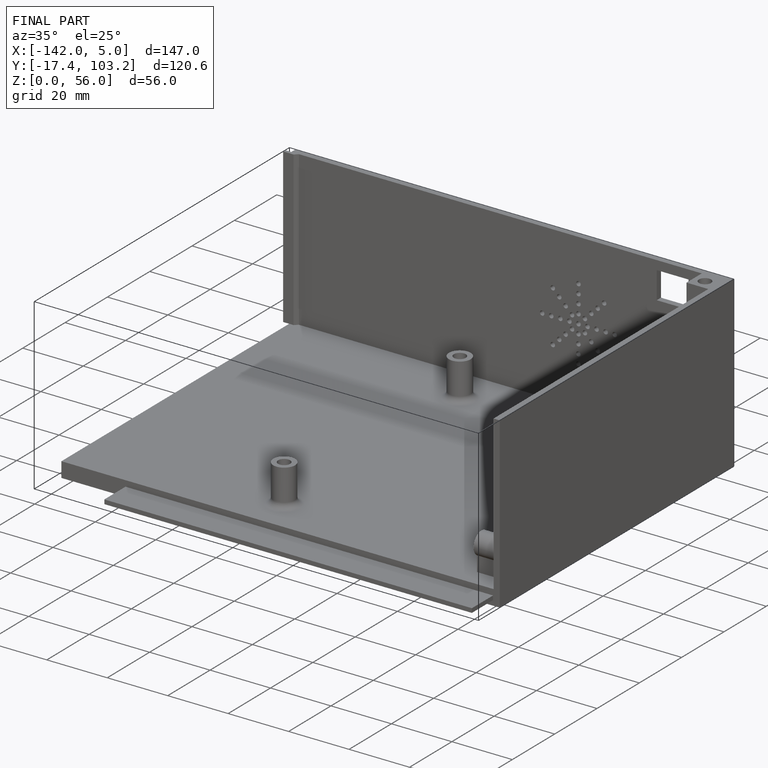
[diagram: finished part — iso view with bounding-box wireframe]
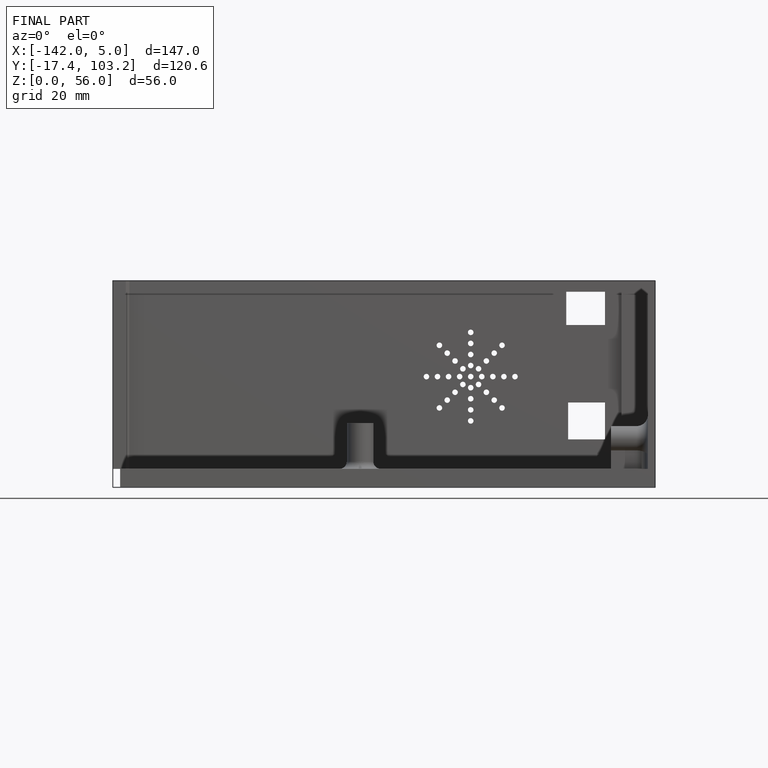
[diagram: finished part — front view with bounding-box wireframe]
